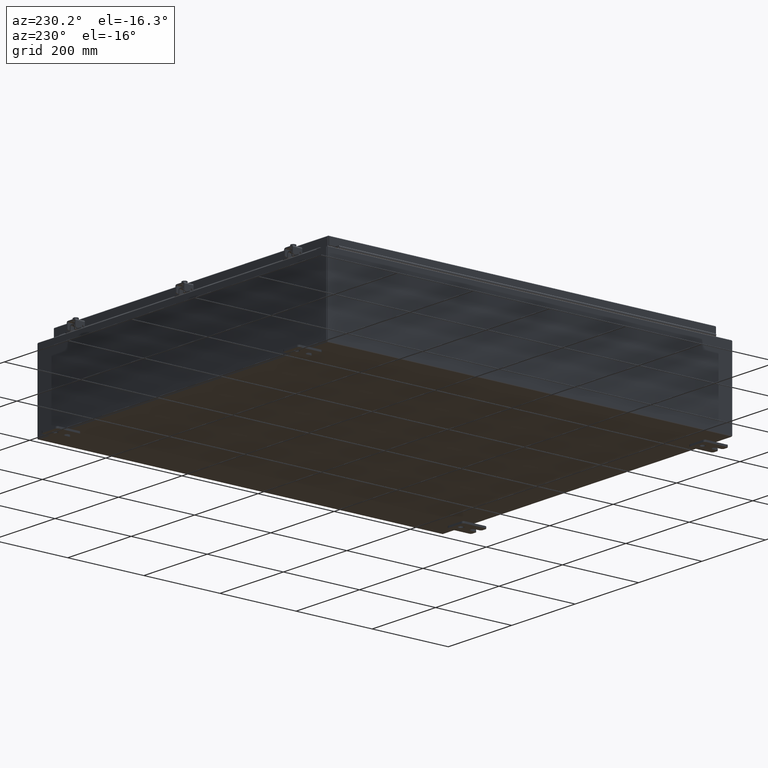
[diagram: clean part render]
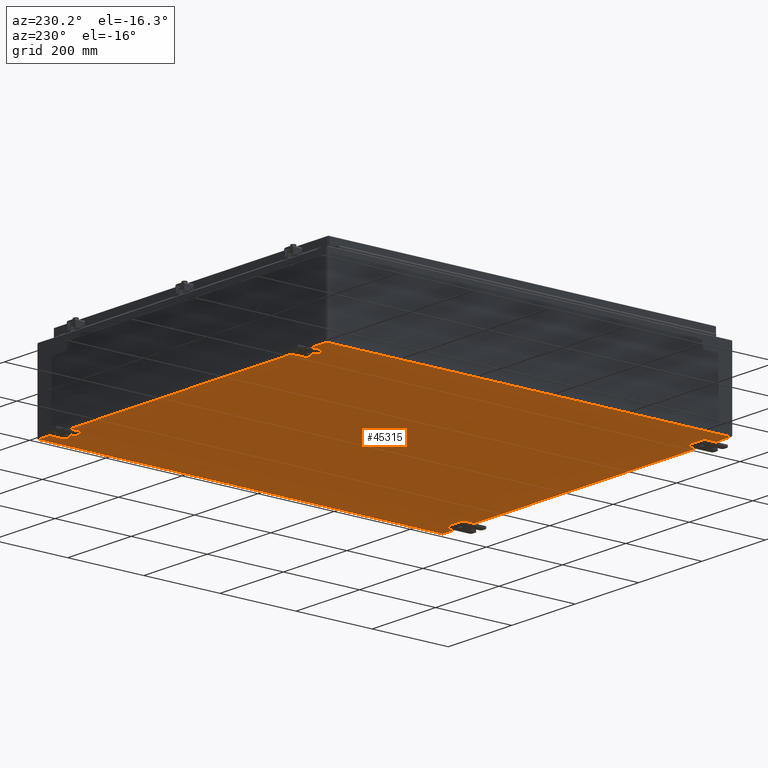
[diagram: same view with one face highlighted and labeled with its STEP entity id]
A machine part, auxiliary view. The second image highlights one B-rep face of the part: STEP entity #45315.
In plain terms, the highlighted planar face has unit normal (0, 0, -1).
Its self-contained STEP definition (entity closure, byte-faithful):
#289 = EDGE_CURVE ( 'NONE', #44042, #10115, #24756, .T. ) ;
#734 = EDGE_CURVE ( 'NONE', #44042, #20436, #10398, .T. ) ;
#942 = LINE ( 'NONE', #33774, #41531 ) ;
#1150 = EDGE_CURVE ( 'NONE', #14178, #20436, #15159, .T. ) ;
#4131 = AXIS2_PLACEMENT_3D ( 'NONE', #10546, #18242, #44979 ) ;
#6356 = DIRECTION ( 'NONE',  ( -1.000000000000000000, -0.0000000000000000000, -0.0000000000000000000 ) ) ;
#8423 = ORIENTED_EDGE ( 'NONE', *, *, #289, .T. ) ;
#10115 = VERTEX_POINT ( 'NONE', #46949 ) ;
#10398 = LINE ( 'NONE', #35650, #30701 ) ;
#10546 = CARTESIAN_POINT ( 'NONE',  ( 0.0000000000000000000, 0.0000000000000000000, -0.07470000000000000300 ) ) ;
#12380 = CARTESIAN_POINT ( 'NONE',  ( -17.91229999999999800, -20.92529999999999300, -0.07469999999999994700 ) ) ;
#14178 = VERTEX_POINT ( 'NONE', #12380 ) ;
#14404 = PLANE ( 'NONE',  #4131 ) ;
#14864 = ORIENTED_EDGE ( 'NONE', *, *, #35491, .F. ) ;
#15159 = LINE ( 'NONE', #17660, #24075 ) ;
#16493 = EDGE_LOOP ( 'NONE', ( #14864, #21027, #45176, #8423 ) ) ;
#17660 = CARTESIAN_POINT ( 'NONE',  ( -17.91229999999999800, -20.92529999999999600, -0.07469999999999994700 ) ) ;
#17819 = DIRECTION ( 'NONE',  ( -0.0000000000000000000, 1.000000000000000000, -0.0000000000000000000 ) ) ;
#18242 = DIRECTION ( 'NONE',  ( 0.0000000000000000000, 0.0000000000000000000, -1.000000000000000000 ) ) ;
#20436 = VERTEX_POINT ( 'NONE', #48678 ) ;
#21027 = ORIENTED_EDGE ( 'NONE', *, *, #1150, .T. ) ;
#22382 = CARTESIAN_POINT ( 'NONE',  ( 17.91230000000000200, 20.92529999999998900, -0.07469999999999994700 ) ) ;
#23183 = CARTESIAN_POINT ( 'NONE',  ( 17.91230000000000200, 20.92529999999998600, -0.07469999999999994700 ) ) ;
#24075 = VECTOR ( 'NONE', #17819, 39.37007874015748100 ) ;
#24756 = LINE ( 'NONE', #22382, #43897 ) ;
#30701 = VECTOR ( 'NONE', #6356, 39.37007874015748100 ) ;
#33774 = CARTESIAN_POINT ( 'NONE',  ( -17.99999999999999600, -20.92530000000000400, -0.07470000000000000300 ) ) ;
#35491 = EDGE_CURVE ( 'NONE', #14178, #10115, #942, .T. ) ;
#35650 = CARTESIAN_POINT ( 'NONE',  ( -17.99999999999999600, 20.92529999999999600, -0.07470000000000000300 ) ) ;
#36872 = DIRECTION ( 'NONE',  ( -0.0000000000000000000, -1.000000000000000000, -0.0000000000000000000 ) ) ;
#41456 = DIRECTION ( 'NONE',  ( 1.000000000000000000, -1.214154663850783700E-016, 0.0000000000000000000 ) ) ;
#41531 = VECTOR ( 'NONE', #41456, 39.37007874015748100 ) ;
#43897 = VECTOR ( 'NONE', #36872, 39.37007874015748100 ) ;
#44042 = VERTEX_POINT ( 'NONE', #23183 ) ;
#44962 = FACE_OUTER_BOUND ( 'NONE', #16493, .T. ) ;
#44979 = DIRECTION ( 'NONE',  ( -1.000000000000000000, 0.0000000000000000000, -0.0000000000000000000 ) ) ;
#45176 = ORIENTED_EDGE ( 'NONE', *, *, #734, .F. ) ;
#45315 = ADVANCED_FACE ( 'NONE', ( #44962 ), #14404, .T. ) ;
#46949 = CARTESIAN_POINT ( 'NONE',  ( 17.91230000000000200, -20.92530000000000700, -0.07470000000000000300 ) ) ;
#48678 = CARTESIAN_POINT ( 'NONE',  ( -17.91229999999999800, 20.92529999999999600, -0.07470000000000000300 ) ) ;